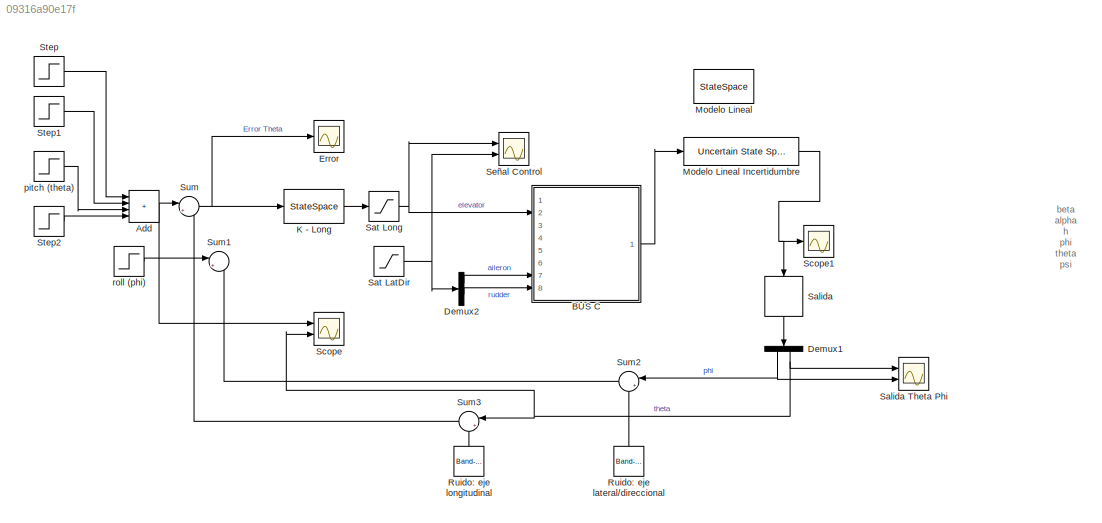
MODEL slx_09316a90e17f
KIND model
CONFIG AbsTol = auto
CONFIG EnableMultiTasking = off
CONFIG FixedStep = auto
CONFIG MaxStep = auto
CONFIG MinStep = auto
CONFIG RelTol = 1e-3
CONFIG SampleTimeConstraint = Unconstrained
CONFIG SolverName = VariableStepAuto
CONFIG StartTime = 0.0
CONFIG StopTime = 20
BLOCK [Sum] Add
  IconShape = rectangular
  Inputs = ++++
  Ports = [4, 1]
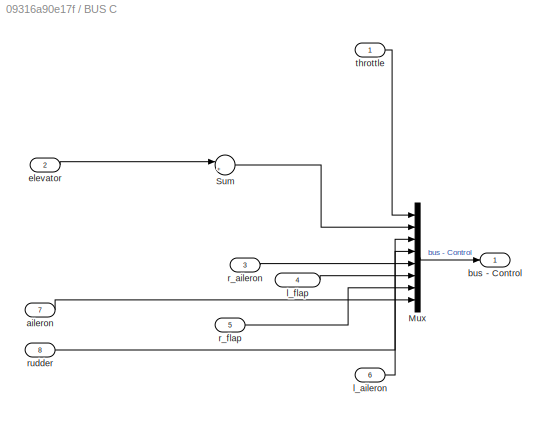
BLOCK [SubSystem] BUS C
  Ports = [8, 1]
  RequestExecContextInheritance = off
BLOCK [Mux] BUS C/Mux
  DisplayOption = bar
  Inputs = 8
  Ports = [8, 1]
BLOCK [Sum] BUS C/Sum
  Inputs = |++
  Ports = [2, 1]
BLOCK [Inport] BUS C/aileron
  Port = 7
BLOCK [Outport] BUS C/bus - Control
BLOCK [Inport] BUS C/elevator
  Port = 2
BLOCK [Inport] BUS C/l_aileron
  Port = 6
BLOCK [Inport] BUS C/l_flap
  Port = 4
BLOCK [Inport] BUS C/r_aileron
  Port = 3
BLOCK [Inport] BUS C/r_flap
  Port = 5
BLOCK [Inport] BUS C/rudder
  Port = 8
BLOCK [Inport] BUS C/throttle
BLOCK [Demux] Demux1
  NameLocation = left
  Outputs = 2
  Ports = [1, 2]
BLOCK [Demux] Demux2
  Outputs = 2
  Ports = [1, 2]
BLOCK [Scope] Error
  Floating = off
  NumInputPorts = 1
  Ports = [1]
  ScopeSpecificationString = Simulink.scopes.TimeScopeBlockCfg('CurrentConfiguration', extmgr.ConfigurationSet(extmgr.Configuration('Core','General UI',true),extmgr.Configuration('Core','Source UI',true),extmgr.Configuration('Sources','WiredSimulink',true,'DataLoggingVariableName','ScopeData2'),extmgr.Configuration('Visuals','Time Domain',true,'SerializedDisplays',{struct('MinYLimReal','-49.63905','MaxYLimReal','49.92028','YL...<+1376ch>
BLOCK [StateSpace] K - Long
  A = K_Long.A
  B = K_Long.B
  C = K_Long.C
  D = K_Long.D
  InitialCondition = 0
  Ports = [1, 1]
BLOCK [StateSpace] Modelo Lineal
  A = linmodel.A
  B = linmodel.B
  C = linmodel.C
  D = linmodel.D
  InitialCondition = 0
  Ports = [1, 1]
BLOCK [Reference] Modelo Lineal Incertidumbre  REF=RCTblocks/Uncertain State Space
  Ports = [1, 1]
  SourceBlock = RCTblocks/Uncertain State Space
  SourceProductBaseCode = RC
  SourceType = Uncertain State Space Block
  Tag = USS
BLOCK [Reference] Ruido:  eje lateral//direccional  REF=simulink/Sources/Band-Limited
White Noise
  NameLocation = right
  Ports = [0, 1]
  SourceBlock = simulink/Sources/Band-Limited\nWhite Noise
  SourceProductBaseCode = SL
  SourceType = Band-Limited White Noise.
BLOCK [Reference] Ruido:  eje longitudinal  REF=simulink/Sources/Band-Limited
White Noise
  NameLocation = right
  Ports = [0, 1]
  SourceBlock = simulink/Sources/Band-Limited\nWhite Noise
  SourceProductBaseCode = SL
  SourceType = Band-Limited White Noise.
BLOCK [Selector] Salida
  IndexOptions = Index vector (dialog)
  Indices = [5 6]
  InputPortWidth = 14
  NameLocation = left
  OutputSizes = 1
  Ports = [1, 1]
BLOCK [Scope] Salida Theta Phi
  Floating = off
  NumInputPorts = 2
  Ports = [2]
  ScopeSpecificationString = Simulink.scopes.TimeScopeBlockCfg('CurrentConfiguration', extmgr.ConfigurationSet(extmgr.Configuration('Core','General UI',true),extmgr.Configuration('Core','Source UI',true),extmgr.Configuration('Sources','WiredSimulink',true,'DataLoggingVariableName','ScopeData2'),extmgr.Configuration('Visuals','Time Domain',true,'SerializedDisplays',{struct('MinYLimReal','-51.29376','MaxYLimReal','55.07969','YL...<+1428ch>
BLOCK [Saturate] Sat LatDir
  LowerLimit = -30
  UpperLimit = 30
BLOCK [Saturate] Sat Long
  LowerLimit = -30
  UpperLimit = 30
BLOCK [Scope] Scope
  Floating = off
  NumInputPorts = 2
  Ports = [2]
  ScopeSpecificationString = Simulink.scopes.TimeScopeBlockCfg('CurrentConfiguration', extmgr.ConfigurationSet(extmgr.Configuration('Core','General UI',true),extmgr.Configuration('Core','Source UI',true),extmgr.Configuration('Sources','WiredSimulink',true,'DataLoggingVariableName','ScopeData3'),extmgr.Configuration('Visuals','Time Domain',true,'SerializedDisplays',{struct('MinYLimReal','-7.27555','MaxYLimReal','41.75388','YLa...<+1476ch>
BLOCK [Scope] Scope1
  Floating = off
  NumInputPorts = 1
  Ports = [1]
  ScopeSpecificationString = Simulink.scopes.TimeScopeBlockCfg('CurrentConfiguration', extmgr.ConfigurationSet(extmgr.Configuration('Core','General UI',true),extmgr.Configuration('Core','Source UI',true),extmgr.Configuration('Sources','WiredSimulink',true,'DataLoggingVariableName','ScopeData1'),extmgr.Configuration('Visuals','Time Domain',true,'SerializedDisplays',{struct('MinYLimReal','-1885.93475','MaxYLimReal','3519.64705'...<+1859ch>
BLOCK [Scope] Señal Control
  Floating = off
  NumInputPorts = 2
  Ports = [2]
  ScopeSpecificationString = Simulink.scopes.TimeScopeBlockCfg('CurrentConfiguration', extmgr.ConfigurationSet(extmgr.Configuration('Core','General UI',true),extmgr.Configuration('Core','Source UI',true),extmgr.Configuration('Sources','WiredSimulink',true,'DataLoggingVariableName','ScopeData1'),extmgr.Configuration('Visuals','Time Domain',true,'SerializedDisplays',{struct('MinYLimReal','-35.81696','MaxYLimReal','25.49618','YL...<+1447ch>
BLOCK [Step] Step
  After = 40
  SampleTime = 0
  Time = 0
BLOCK [Step] Step1
  After = -40
  SampleTime = 0
  Time = 5
BLOCK [Step] Step2
  After = -40
  SampleTime = 0
  Time = 15
BLOCK [Sum] Sum
  Inputs = |+-
  Ports = [2, 1]
BLOCK [Sum] Sum1
  Inputs = |+-
  Ports = [2, 1]
BLOCK [Sum] Sum2
  Inputs = |++
  NameLocation = top
  Ports = [2, 1]
BLOCK [Sum] Sum3
  Inputs = |++
  NameLocation = top
  Ports = [2, 1]
BLOCK [Step] pitch (theta)
  After = 40
  SampleTime = 0
  Time = 10
BLOCK [Step] roll (phi)
  After = 40
  SampleTime = 0
ANNOTATION (root): beta alpha h phi theta psi p q r gamma ax ay az
NET Add:1 -> Scope:1, Sum:1
LINE BUS C/Mux:1 -> BUS C/bus - Control:1
LINE BUS C/Sum:1 -> BUS C/Mux:2
LINE BUS C/aileron:1 -> BUS C/Mux:8
LINE BUS C/elevator:1 -> BUS C/Sum:1
LINE BUS C/l_aileron:1 -> BUS C/Mux:4
LINE BUS C/l_flap:1 -> BUS C/Mux:6
LINE BUS C/r_aileron:1 -> BUS C/Mux:5
LINE BUS C/r_flap:1 -> BUS C/Mux:7
LINE BUS C/rudder:1 -> BUS C/Mux:3
LINE BUS C/throttle:1 -> BUS C/Mux:1
LINE BUS C:1 -> Modelo Lineal Incertidumbre:1
NET Demux1:1 -> Salida Theta Phi:2, Sum2:1
NET Demux1:2 -> Salida Theta Phi:1, Scope:2, Sum3:1
LINE Demux2:1 -> BUS C:7
LINE Demux2:2 -> BUS C:8
LINE K - Long:1 -> Sat Long:1
NET Modelo Lineal Incertidumbre:1 -> Salida:1, Scope1:1
LINE Ruido:  eje lateral//direccional:1 -> Sum2:2
LINE Ruido:  eje longitudinal:1 -> Sum3:2
LINE Salida:1 -> Demux1:1
NET Sat LatDir:1 -> Demux2:1, Señal Control:2
NET Sat Long:1 -> BUS C:2, Señal Control:1
LINE Step1:1 -> Add:2
LINE Step2:1 -> Add:4
LINE Step:1 -> Add:1
LINE Sum2:1 -> Sum1:2
LINE Sum3:1 -> Sum:2
NET Sum:1 -> Error:1, K - Long:1
LINE pitch (theta):1 -> Add:3
LINE roll (phi):1 -> Sum1:1
note: NET lines group one-source signal fan-out (src -> all destinations, sorted); 1:1 wires keep LINE
